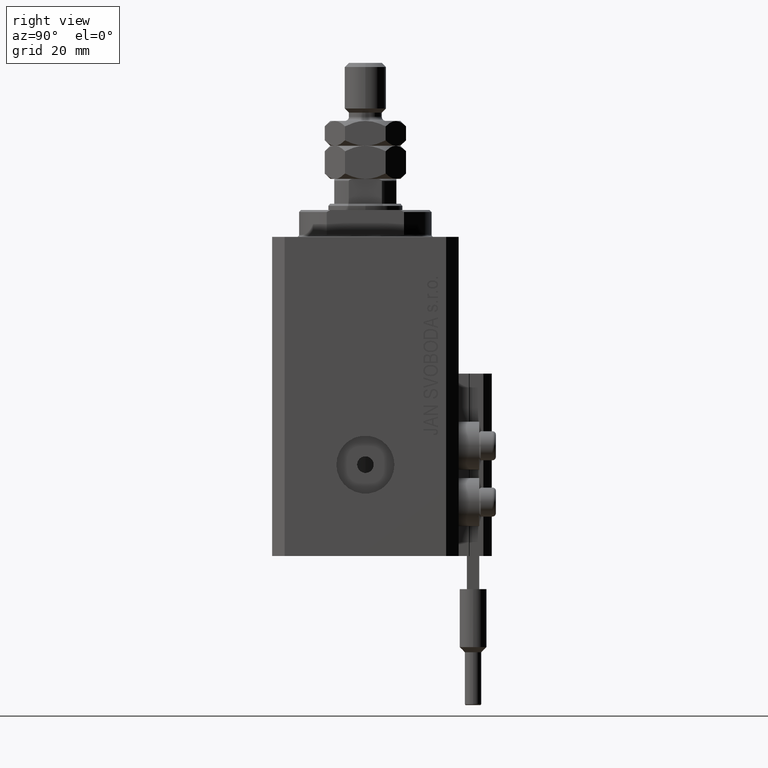
[diagram: clean part render]
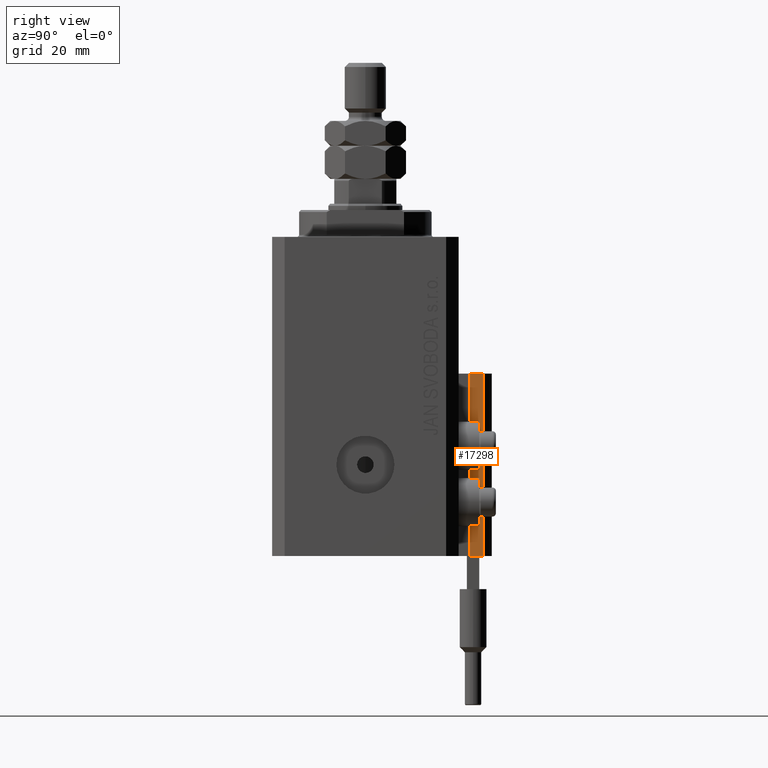
[diagram: same view with one face highlighted and labeled with its STEP entity id]
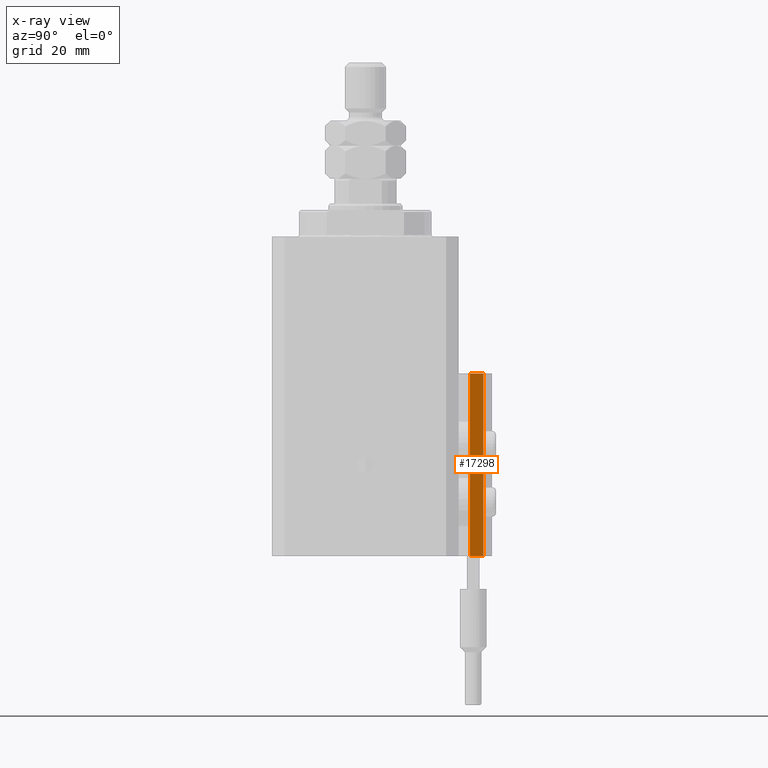
[diagram: x-ray of the same camera — body ghosted, the highlighted face saturated]
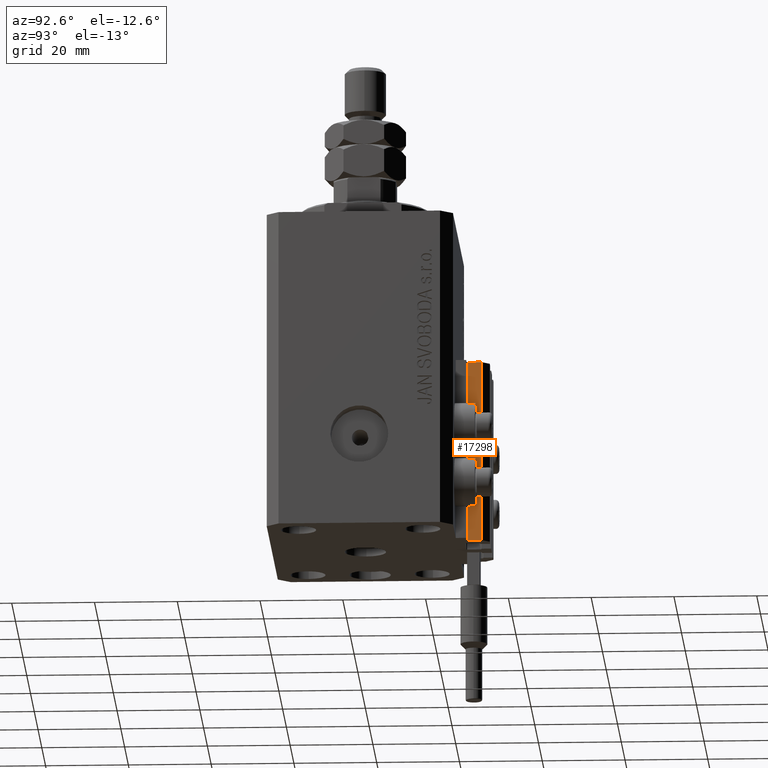
[diagram: same view with one face highlighted and labeled with its STEP entity id]
A machine part, right view. The second image highlights one B-rep face of the part: STEP entity #17298.
The next image is the same camera in x-ray: the body ghosted, the highlighted face saturated — about 0% of this face is hidden behind the body in this view.
A second angle (auxiliary view) of the same face is appended — the face is thin or edge-on in the first view.
In plain terms, the highlighted planar face has unit normal (1, 0, 0).
Its self-contained STEP definition (entity closure, byte-faithful):
#1743 = VERTEX_POINT ( 'NONE', #40897 ) ;
#9236 = ORIENTED_EDGE ( 'NONE', *, *, #14116, .F. ) ;
#9617 = VECTOR ( 'NONE', #14038, 1000.000000000000000 ) ;
#10442 = DIRECTION ( 'NONE',  ( 1.000000000000000000, 0.000000000000000000, 0.000000000000000000 ) ) ;
#10696 = DIRECTION ( 'NONE',  ( 0.000000000000000000, 0.000000000000000000, -1.000000000000000000 ) ) ;
#10786 = DIRECTION ( 'NONE',  ( 0.000000000000000000, 0.000000000000000000, 1.000000000000000000 ) ) ;
#12036 = VECTOR ( 'NONE', #35689, 1000.000000000000000 ) ;
#12277 = CARTESIAN_POINT ( 'NONE',  ( 12.00000000000000178, 25.19999999999951257, -33.00000000000000000 ) ) ;
#14038 = DIRECTION ( 'NONE',  ( 0.000000000000000000, 1.000000000000000000, 0.000000000000000000 ) ) ;
#14116 = EDGE_CURVE ( 'NONE', #30121, #17041, #37029, .T. ) ;
#14737 = VERTEX_POINT ( 'NONE', #43986 ) ;
#15458 = FACE_OUTER_BOUND ( 'NONE', #36526, .T. ) ;
#15969 = ORIENTED_EDGE ( 'NONE', *, *, #20627, .T. ) ;
#17041 = VERTEX_POINT ( 'NONE', #41051 ) ;
#17298 = ADVANCED_FACE ( 'NONE', ( #15458 ), #25800, .T. ) ;
#18109 = CARTESIAN_POINT ( 'NONE',  ( 12.00000000000000355, 25.19999999999951257, -77.00000000000000000 ) ) ;
#20627 = EDGE_CURVE ( 'NONE', #30121, #14737, #36955, .T. ) ;
#21709 = ORIENTED_EDGE ( 'NONE', *, *, #34472, .T. ) ;
#22108 = CARTESIAN_POINT ( 'NONE',  ( 12.00000000000000355, 25.19999999999951257, -77.00000000000000000 ) ) ;
#22354 = VECTOR ( 'NONE', #37278, 1000.000000000000000 ) ;
#24100 = VECTOR ( 'NONE', #10786, 1000.000000000000000 ) ;
#24933 = AXIS2_PLACEMENT_3D ( 'NONE', #29825, #10442, #10696 ) ;
#25800 = PLANE ( 'NONE',  #24933 ) ;
#27862 = LINE ( 'NONE', #12277, #12036 ) ;
#29186 = CARTESIAN_POINT ( 'NONE',  ( 12.00000000000000178, 28.49999999999950973, -77.00000000000000000 ) ) ;
#29825 = CARTESIAN_POINT ( 'NONE',  ( 12.00000000000000178, 25.19999999999951257, -77.00000000000000000 ) ) ;
#30121 = VERTEX_POINT ( 'NONE', #22108 ) ;
#33857 = EDGE_CURVE ( 'NONE', #17041, #1743, #27862, .T. ) ;
#34472 = EDGE_CURVE ( 'NONE', #14737, #1743, #45297, .T. ) ;
#35689 = DIRECTION ( 'NONE',  ( 0.000000000000000000, 1.000000000000000000, 0.000000000000000000 ) ) ;
#36526 = EDGE_LOOP ( 'NONE', ( #45173, #9236, #15969, #21709 ) ) ;
#36955 = LINE ( 'NONE', #48561, #9617 ) ;
#37029 = LINE ( 'NONE', #18109, #22354 ) ;
#37278 = DIRECTION ( 'NONE',  ( 0.000000000000000000, 0.000000000000000000, 1.000000000000000000 ) ) ;
#40897 = CARTESIAN_POINT ( 'NONE',  ( 12.00000000000000178, 28.49999999999950973, -33.00000000000000000 ) ) ;
#41051 = CARTESIAN_POINT ( 'NONE',  ( 12.00000000000000355, 25.19999999999951257, -33.00000000000000000 ) ) ;
#43986 = CARTESIAN_POINT ( 'NONE',  ( 12.00000000000000178, 28.49999999999950973, -77.00000000000000000 ) ) ;
#45173 = ORIENTED_EDGE ( 'NONE', *, *, #33857, .F. ) ;
#45297 = LINE ( 'NONE', #29186, #24100 ) ;
#48561 = CARTESIAN_POINT ( 'NONE',  ( 12.00000000000000178, 25.19999999999951257, -77.00000000000000000 ) ) ;